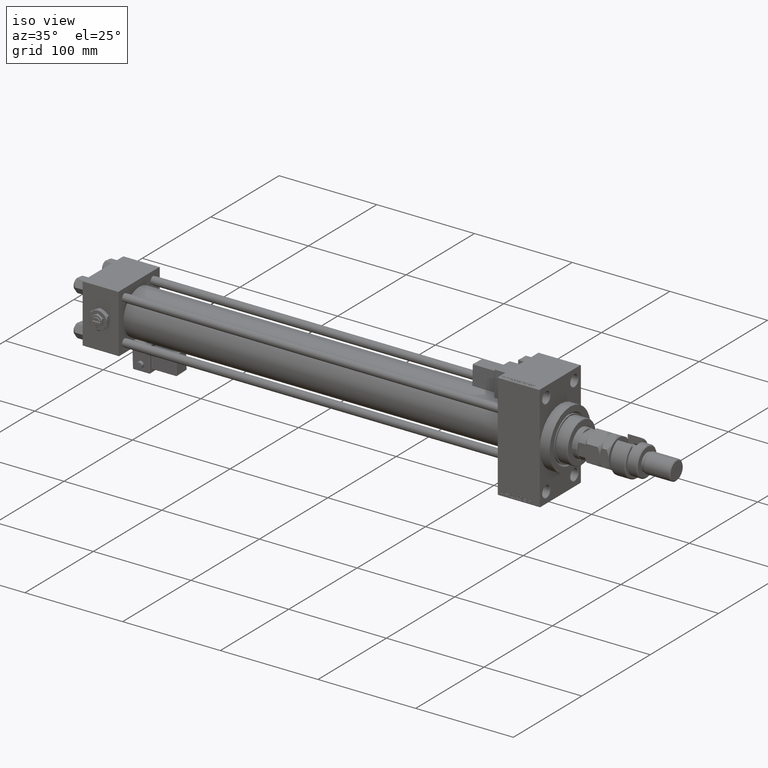
[diagram: clean part render]
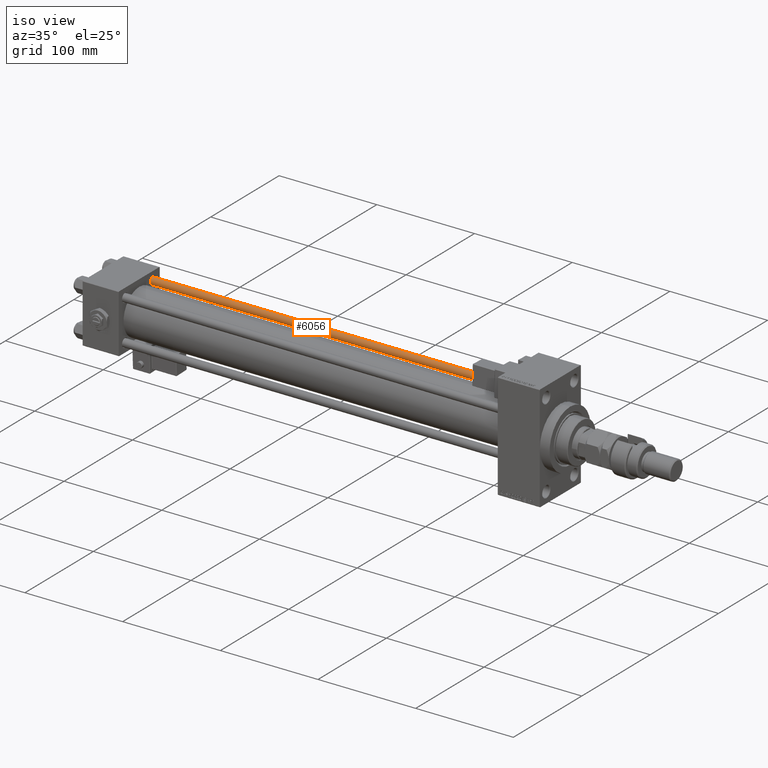
[diagram: same view with one face highlighted and labeled with its STEP entity id]
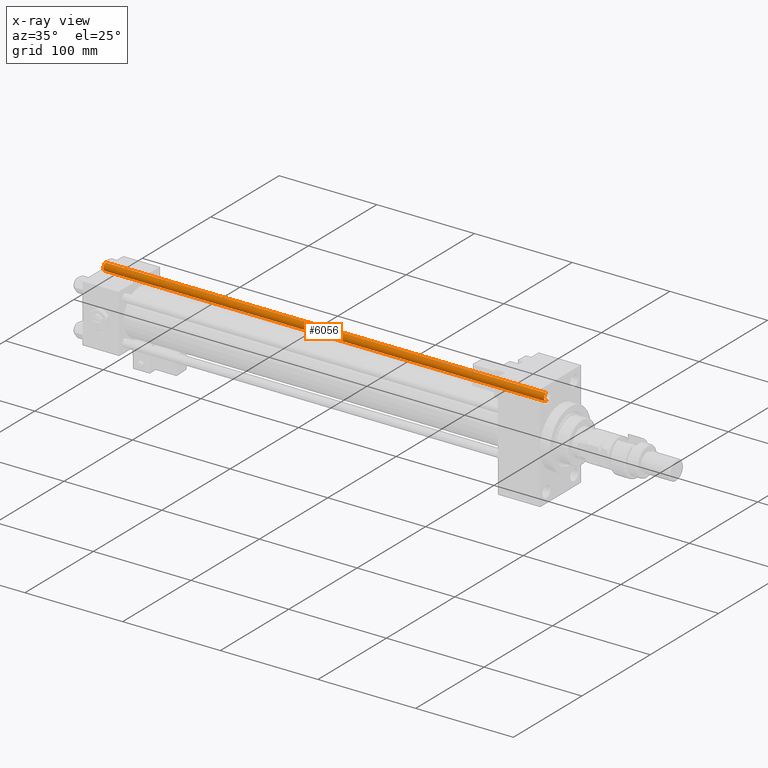
[diagram: x-ray of the same camera — body ghosted, the highlighted face saturated]
A machine part, iso view. The second image highlights one B-rep face of the part: STEP entity #6056.
The next image is the same camera in x-ray: the body ghosted, the highlighted face saturated — about 0% of this face is hidden behind the body in this view.
In plain terms, the highlighted cylindrical surface (edge-blend (fillet) strip) has radius 4 mm, axis along (-1, -0, 0).
Its self-contained STEP definition (entity closure, byte-faithful):
#874 = AXIS2_PLACEMENT_3D ( 'NONE', #13192, #16231, #32901 ) ;
#1068 = EDGE_CURVE ( 'NONE', #48665, #45102, #51101, .T. ) ;
#1766 = CIRCLE ( 'NONE', #874, 4.000000000000000000 ) ;
#4337 = CARTESIAN_POINT ( 'NONE',  ( -4.000000000000000000, 0.000000000000000000, 452.0000000000000000 ) ) ;
#4425 = ORIENTED_EDGE ( 'NONE', *, *, #20037, .T. ) ;
#6056 = ADVANCED_FACE ( 'NONE', ( #47122 ), #32290, .T. ) ;
#9681 = CARTESIAN_POINT ( 'NONE',  ( 0.000000000000000000, 0.000000000000000000, 452.0000000000000000 ) ) ;
#10762 = ORIENTED_EDGE ( 'NONE', *, *, #11745, .T. ) ;
#11745 = EDGE_CURVE ( 'NONE', #48665, #52577, #1766, .T. ) ;
#13192 = CARTESIAN_POINT ( 'NONE',  ( 0.000000000000000000, 0.000000000000000000, 451.5000000000000000 ) ) ;
#13665 = DIRECTION ( 'NONE',  ( -0.000000000000000000, -0.000000000000000000, -1.000000000000000000 ) ) ;
#14733 = ORIENTED_EDGE ( 'NONE', *, *, #21819, .T. ) ;
#16231 = DIRECTION ( 'NONE',  ( 0.000000000000000000, 0.000000000000000000, -1.000000000000000000 ) ) ;
#20037 = EDGE_CURVE ( 'NONE', #52577, #49605, #53821, .T. ) ;
#21819 = EDGE_CURVE ( 'NONE', #49605, #45102, #42270, .T. ) ;
#22547 = DIRECTION ( 'NONE',  ( -1.000000000000000000, 0.000000000000000000, 0.000000000000000000 ) ) ;
#25053 = CARTESIAN_POINT ( 'NONE',  ( -4.000000000000000000, 0.000000000000000000, 451.5000000000000000 ) ) ;
#25702 = CARTESIAN_POINT ( 'NONE',  ( 4.000000000000000000, 4.898587196589412829E-16, 452.0000000000000000 ) ) ;
#32290 = CYLINDRICAL_SURFACE ( 'NONE', #44654, 4.000000000000000000 ) ;
#32901 = DIRECTION ( 'NONE',  ( 1.000000000000000000, 0.000000000000000000, 0.000000000000000000 ) ) ;
#36903 = ORIENTED_EDGE ( 'NONE', *, *, #1068, .F. ) ;
#37335 = CARTESIAN_POINT ( 'NONE',  ( 0.000000000000000000, 0.000000000000000000, 0.5000000000000004441 ) ) ;
#38101 = CARTESIAN_POINT ( 'NONE',  ( 4.000000000000000000, 4.898587196589412829E-16, 451.5000000000000000 ) ) ;
#40514 = AXIS2_PLACEMENT_3D ( 'NONE', #37335, #49886, #44717 ) ;
#41536 = CARTESIAN_POINT ( 'NONE',  ( 4.000000000000000000, 4.898587196589412829E-16, 0.5000000000000004441 ) ) ;
#42270 = CIRCLE ( 'NONE', #40514, 4.000000000000000000 ) ;
#43306 = DIRECTION ( 'NONE',  ( -0.000000000000000000, -0.000000000000000000, -1.000000000000000000 ) ) ;
#44654 = AXIS2_PLACEMENT_3D ( 'NONE', #9681, #43306, #22547 ) ;
#44717 = DIRECTION ( 'NONE',  ( 1.000000000000000000, 0.000000000000000000, 0.000000000000000000 ) ) ;
#45080 = DIRECTION ( 'NONE',  ( -0.000000000000000000, -0.000000000000000000, -1.000000000000000000 ) ) ;
#45102 = VERTEX_POINT ( 'NONE', #41536 ) ;
#45652 = VECTOR ( 'NONE', #45080, 1000.000000000000000 ) ;
#45850 = EDGE_LOOP ( 'NONE', ( #36903, #10762, #4425, #14733 ) ) ;
#47122 = FACE_OUTER_BOUND ( 'NONE', #45850, .T. ) ;
#48665 = VERTEX_POINT ( 'NONE', #38101 ) ;
#49605 = VERTEX_POINT ( 'NONE', #53205 ) ;
#49643 = VECTOR ( 'NONE', #13665, 1000.000000000000000 ) ;
#49886 = DIRECTION ( 'NONE',  ( -0.000000000000000000, -0.000000000000000000, 1.000000000000000000 ) ) ;
#51101 = LINE ( 'NONE', #25702, #49643 ) ;
#52577 = VERTEX_POINT ( 'NONE', #25053 ) ;
#53205 = CARTESIAN_POINT ( 'NONE',  ( -4.000000000000000000, 0.000000000000000000, 0.5000000000000004441 ) ) ;
#53821 = LINE ( 'NONE', #4337, #45652 ) ;